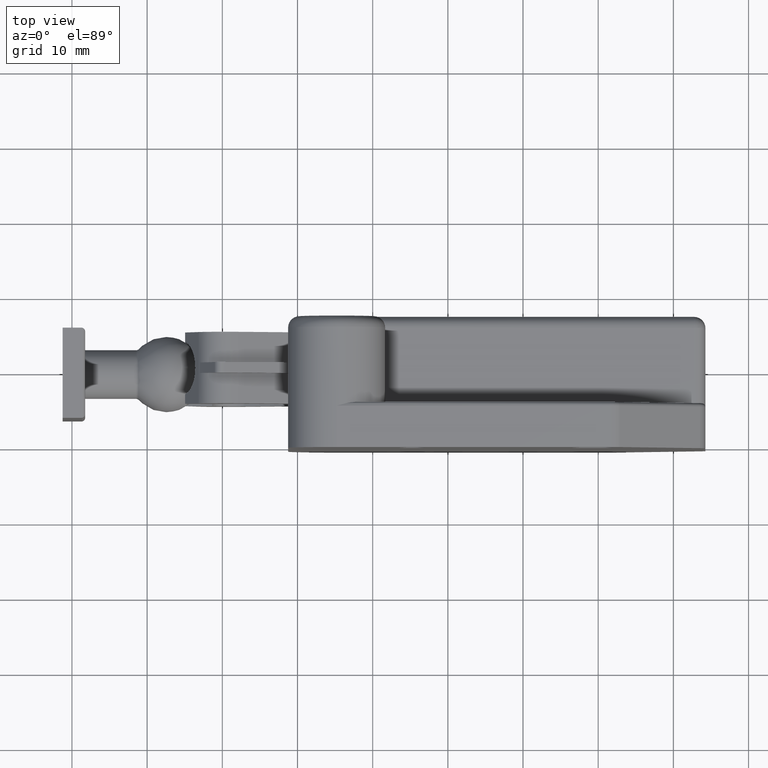
[diagram: clean part render]
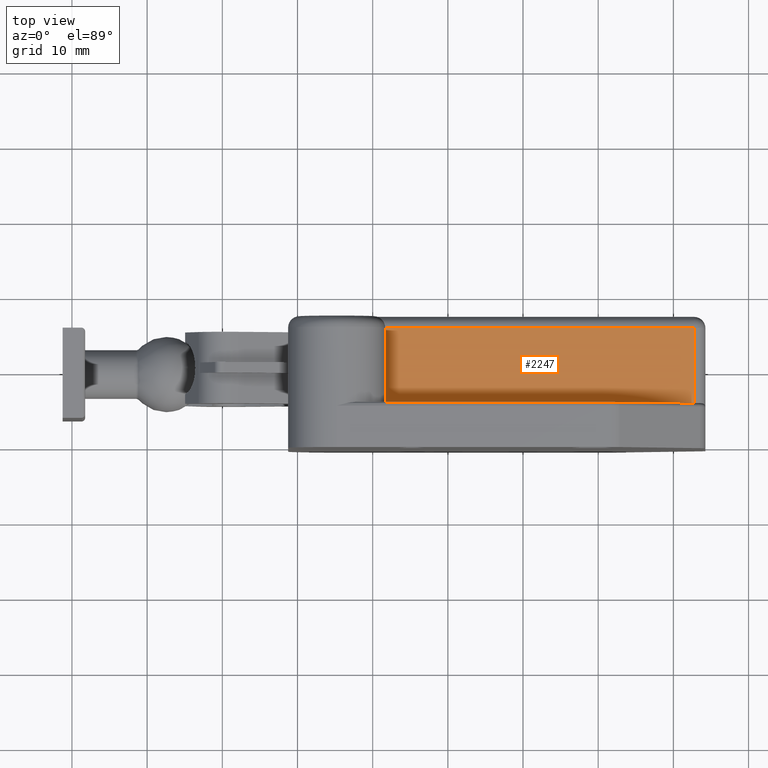
[diagram: same view with one face highlighted and labeled with its STEP entity id]
A machine part, top view. The second image highlights one B-rep face of the part: STEP entity #2247.
In plain terms, the highlighted planar face has unit normal (0, 0, 1).
Its self-contained STEP definition (entity closure, byte-faithful):
#106=PLANE('',#2454);
#175=LINE('',#3415,#371);
#255=LINE('',#3675,#451);
#256=LINE('',#3679,#452);
#257=LINE('',#3680,#453);
#371=VECTOR('',#2678,41.1);
#451=VECTOR('',#2954,10.);
#452=VECTOR('',#2959,10.);
#453=VECTOR('',#2960,41.1);
#669=FACE_OUTER_BOUND('',#808,.T.);
#808=EDGE_LOOP('',(#1829,#1830,#1831,#1832));
#1030=VERTEX_POINT('',#3413);
#1031=VERTEX_POINT('',#3414);
#1113=VERTEX_POINT('',#3674);
#1114=VERTEX_POINT('',#3678);
#1256=EDGE_CURVE('',#1030,#1031,#175,.T.);
#1383=EDGE_CURVE('',#1113,#1031,#255,.T.);
#1385=EDGE_CURVE('',#1114,#1030,#256,.T.);
#1386=EDGE_CURVE('',#1113,#1114,#257,.T.);
#1829=ORIENTED_EDGE('',*,*,#1256,.F.);
#1830=ORIENTED_EDGE('',*,*,#1385,.F.);
#1831=ORIENTED_EDGE('',*,*,#1386,.F.);
#1832=ORIENTED_EDGE('',*,*,#1383,.T.);
#2247=ADVANCED_FACE('',(#669),#106,.T.);
#2454=AXIS2_PLACEMENT_3D('',#3677,#2957,#2958);
#2678=DIRECTION('',(6.48305415839507E-16,-1.,0.));
#2954=DIRECTION('',(0.,0.,1.));
#2957=DIRECTION('center_axis',(-1.,-6.48305415839507E-16,0.));
#2958=DIRECTION('ref_axis',(7.105427357601E-16,-1.,0.));
#2959=DIRECTION('',(0.,0.,1.));
#2960=DIRECTION('',(-6.48305415839507E-16,1.,0.));
#3413=CARTESIAN_POINT('',(-11.5,14.85,16.));
#3414=CARTESIAN_POINT('',(-11.5,-26.25,16.));
#3415=CARTESIAN_POINT('',(-11.5,18.075,16.));
#3674=CARTESIAN_POINT('',(-11.5,-26.25,6.));
#3675=CARTESIAN_POINT('',(-11.5,-26.25,6.));
#3677=CARTESIAN_POINT('Origin',(-11.5,14.85,6.));
#3678=CARTESIAN_POINT('',(-11.5,14.85,6.));
#3679=CARTESIAN_POINT('',(-11.5,14.85,6.));
#3680=CARTESIAN_POINT('',(-11.5,7.73964902641754,6.));